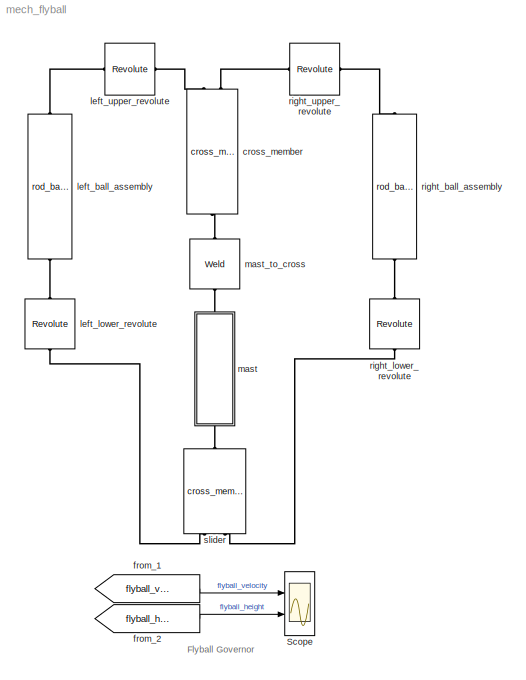
MODEL mech_flyball
KIND model
CONFIG InitFcn = flyball=mech_flyball_data;
CONFIG PreLoadFcn = flyball=mech_flyball_data;
BLOCK [Scope] Scope
  DataFormat = StructureWithTime
  NumInputPorts = 2
  Ports = [2]
  YMax = 50~20
  YMin = 0~-2.5
BLOCK [Reference] cross_member  REF=mech_flyball_lib/cross_member  (lib defined in mdl_2065cbf4949d, mdl_c7b35286ae11)
  Ports = [0, 0, 0, 0, 0, 2, 1]
  ShowPortLabels = on
  SourceBlock = mech_flyball_lib/cross_member
  density = flyball.brass
  rod_length = flyball.cross_member.length
  rod_radius = flyball.cross_member.radius
BLOCK [From] from_1
  CloseFcn = tagdialog Close
  DialogController = Simulink.DDGSource
  GotoTag = flyball_velocity
BLOCK [From] from_2
  CloseFcn = tagdialog Close
  DialogController = Simulink.DDGSource
  GotoTag = flyball_height
BLOCK [Reference] left_ball_assembly  REF=mech_flyball_lib/rod_ball_assembly  (lib defined in mdl_2065cbf4949d, mdl_c7b35286ae11)
  Ports = [0, 0, 0, 0, 0, 1, 1]
  ShowPortLabels = on
  SourceBlock = mech_flyball_lib/rod_ball_assembly
  ball_radius = flyball.ball.radius
  density = flyball.brass
  hookup_length = flyball.ball_rod.connection
  rod_length = flyball.ball_rod.length
  rod_radius = flyball.ball_rod.radius
  rotation = pi/4
BLOCK [Reference] left_lower_revolute  REF=mblibv1/Joints/Revolute
  ClassName = Joint
  CutJoint = off
  DialogClass = JointBlock
  LConnTagsString = __newl0
  LeftPortType = blob
  MarkAsCut = off
  NumSAPorts = 0
  PhysicalDomain = mechanical
  Ports = [0, 0, 0, 0, 0, 1, 1]
  PrimitiveProps = R1$WORLD$[0 1 0]$revolute
  Primitives = revolute
  RConnTagsString = __newr0
  RightPortType = blob
  SourceBlock = mblibv1/Joints/Revolute
  SourceType = msb
  SubClassName = Unknown
BLOCK [Reference] left_upper_revolute  REF=mblibv1/Joints/Revolute
  ClassName = Joint
  CutJoint = off
  DialogClass = JointBlock
  LConnTagsString = __newl0
  LeftPortType = blob
  MarkAsCut = off
  NumSAPorts = 0
  PhysicalDomain = mechanical
  Ports = [0, 0, 0, 0, 0, 1, 1]
  PrimitiveProps = R1$WORLD$[0 1 0]$revolute
  Primitives = revolute
  RConnTagsString = __newr0
  RightPortType = blob
  SourceBlock = mblibv1/Joints/Revolute
  SourceType = msb
  SubClassName = Unknown
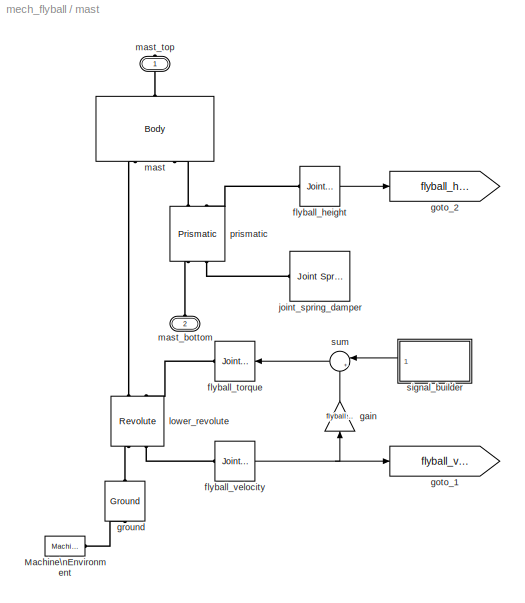
BLOCK [SubSystem] mast
  MinAlgLoopOccurrences = off
  Ports = [0, 0, 0, 0, 0, 1, 1]
  RTWSystemCode = Auto
  TreatAsAtomicUnit = off
BLOCK [Reference] mast/Machine\nEnvironment  REF=mblibv1/Bodies/Machine\nEnvironment
  AnalysisType = Forward dynamics
  AngularAssemblyTolerance = 1e-3
  AngularAssemblyToleranceUnits = rad
  ClassName = Environment
  ConstraintAbsTolerance = 1e-4
  ConstraintRelTolerance = 1e-4
  ConstraintSolverType = Stabilizing
  DialogController = MECH.DialogSource
  DialogTemplateClass = MECH.MachineEnvironment
  Dimensionality = 3D Only
  Gravity = [0 0 -9.81]
  GravityAsSignal = off
  GravityUnits = m/s^2
  LinearAssemblyTolerance = 1e-3
  LinearAssemblyToleranceUnits = m
  Opaque = on
  PerturbationSize = 1e-5
  PhysicalDomain = Mechanical
  PortType = env
  Ports = [0, 0, 0, 0, 0, 0, 1]
  ShowPortLabels = on
  SourceBlock = mblibv1/Bodies/Machine\nEnvironment
  SourceType = Mechanical
  StatePerturbationType = Fixed
  SyncWhenCopied = off
  Tag = Factory ground
  UseRobustSingularityHandling = off
  VisualizeMachine = on
BLOCK [Reference] mast/flyball_height  REF=mblibv1/Sensors & \nActuators/Joint Sensor
  Acceleration = off
  AccelerationUnits = m/s^2
  ActiveIO = on
  Angle = on
  AngleUnits = deg
  ArcAcceleration = off
  ArcAccelerationUnits = deg/s^2
  ArcVelocity = off
  ArcVelocityUnits = deg/s
  ClassName = JointSensor
  CoordPosition = on
  CoordPositionUnits = cm
  DialogClass = MechanicalSensorBlock
  Force = off
  ForceUnits = N
  Muxed = on
  Opaque = on
  OutputVector = [ 1 ]
  PhysicalDomain = Mechanical
  PortType = blob
  Ports = [0, 1, 0, 0, 0, 1]
  Pose = off
  Primitive = P1
  Quaternion = on
  QuaternionDDT = off
  QuaternionDT = off
  QuaternionUnits = deg
  ReactionForce = off
  ReactionForceUnits = N
  ReactionMoment = off
  ReactionMomentUnits = N-m
  ReactionReferenceFrame = Absolute (World)
  ReactionSensedSide = Base
  ReferenceFrame = Absolute (INERTIAL)
  ShowPortLabels = on
  SourceBlock = mblibv1/Sensors & \nActuators/Joint Sensor
  SourceType = msb
  Torque = off
  TorqueUnits = N-m
  Velocity = off
  VelocityUnits = m/s
  Width = 1
BLOCK [Reference] mast/flyball_torque  REF=mblibv1/Sensors & \nActuators/Joint Actuator
  AccelerationUnits = cm/s^2
  ActiveIO = on
  ActuationStyle = Force
  AngleUnits = rad
  ArcAccelerationUnits = rad/s^2
  ArcVelocityUnits = rad/s
  ClassName = JointActuator
  CoordPositionUnits = cm
  DialogClass = MechanicalActuatorBlock
  ForceUnits = N
  Opaque = on
  PhysicalDomain = Mechanical
  PortType = blob
  Ports = [1, 0, 0, 0, 0, 0, 1]
  Primitive = R1
  ReferenceFrame = Absolute (INERTIAL)
  ShowPortLabels = on
  SourceBlock = mblibv1/Sensors & \nActuators/Joint Actuator
  SourceType = msb
  TorqueUnits = N-m
  VelocityUnits = cm/s
  Width = 1
BLOCK [Reference] mast/flyball_velocity  REF=mblibv1/Sensors & \nActuators/Joint Sensor
  Acceleration = off
  AccelerationUnits = m/s^2
  ActiveIO = on
  Angle = off
  AngleUnits = deg
  ArcAcceleration = off
  ArcAccelerationUnits = deg/s^2
  ArcVelocity = on
  ArcVelocityUnits = rad/s
  ClassName = JointSensor
  CoordPosition = on
  CoordPositionUnits = m
  DialogClass = MechanicalSensorBlock
  Force = off
  ForceUnits = N
  Muxed = on
  Opaque = on
  OutputVector = [ 1 ]
  PhysicalDomain = Mechanical
  PortType = blob
  Ports = [0, 1, 0, 0, 0, 1]
  Pose = off
  Primitive = R1
  Quaternion = on
  QuaternionDDT = off
  QuaternionDT = off
  QuaternionUnits = deg
  ReactionForce = off
  ReactionForceUnits = N
  ReactionMoment = off
  ReactionMomentUnits = N-m
  ReactionReferenceFrame = Absolute (World)
  ReactionSensedSide = Base
  ReferenceFrame = Absolute (INERTIAL)
  ShowPortLabels = on
  SourceBlock = mblibv1/Sensors & \nActuators/Joint Sensor
  SourceType = msb
  Torque = off
  TorqueUnits = N-m
  Velocity = off
  VelocityUnits = m/s
  Width = 1
BLOCK [Gain] mast/gain
  Gain = flyball.mast.rotational_damping
BLOCK [Goto] mast/goto_1
  DialogController = Simulink.DDGSource
  GotoTag = flyball_velocity
  TagVisibility = global
BLOCK [Goto] mast/goto_2
  DialogController = Simulink.DDGSource
  GotoTag = flyball_height
  TagVisibility = global
BLOCK [Reference] mast/ground  REF=mblibv1/Bodies/Ground
  ClassName = Ground
  CoordPosition = [0 0 0]
  CoordPositionUnits = m
  DialogClass = GroundBlock
  LeftPortType = env
  MachineId = [0 0]
  Opaque = on
  PhysicalDomain = Mechanical
  Ports = [0, 0, 0, 0, 0, 1, 1]
  RightPortType = workingframe
  ShowEnvPort = on
  ShowPortLabels = on
  SourceBlock = mblibv1/Bodies/Ground
  SourceType = msb
  StateVectorMgrId = -1
  UserData = DataTag0
  UserDataPersistent = on
BLOCK [Reference] mast/joint_spring_damper  REF=mblibv1/Force \nElements/Joint Spring & Damper
  ClassName = JointSpringDamper
  DialogClass = JointSpringDamper
  JFEParameters = P1$true$flyball.mast.spring$flyball.mast.damping$0$cm$cm/s$N$rad$rad/s$N-m#P2$false$0$0$0$m$m/s$N$rad$rad/s$N-m#P3$false$0$0$0$m$m/s$N$rad$rad/s$N-m#R1$false$0$0$0$m$m/s$N$rad$rad/s$N-m#R2$false$0$0$0$m$m/s$N$rad$rad/s$N-m#R3$false$0$0$0$m$m/s$N$rad$rad/s$N-m#S$false$0$0$0$m$m/s$N$rad$rad/s$N-m
  Ports = [0, 0, 0, 0, 0, 1]
  ShowPortLabels = on
  SourceBlock = mblibv1/Force \nElements/Joint Spring & Damper
  SourceType = msb
BLOCK [Reference] mast/lower_revolute  REF=mblibv1/Joints/Revolute
  ClassName = Joint
  CutJoint = off
  DialogClass = JointBlock
  LConnTagsString = __newl0|SA1
  LeftPortType = blob
  MarkAsCut = off
  NumSAPorts = 2
  PhysicalDomain = mechanical
  Ports = [0, 0, 0, 0, 0, 2, 2]
  PrimitiveProps = R1$WORLD$[0 0 1]$revolute
  Primitives = revolute
  RConnTagsString = __newr0|SA1
  RightPortType = blob
  SourceBlock = mblibv1/Joints/Revolute
  SourceType = msb
  SubClassName = Unknown
BLOCK [Reference] mast/mast  REF=mblibv1/Bodies/Body
  CG = Left$CG$[0 0 flyball.mast.length]*0.5$CS1$CS1$cm$[0 0 0]$Euler X-Y-Z$deg$WORLD$false
  ClassName = Body
  Density = 1
  DensityUnits = kg/m^3
  DensityUse = false
  DialogClass = MechanicalBodyBlock
  Inertia = mech_flyball_rod_inertia(flyball.mast.length, flyball.mast.radius, flyball.brass, [0 0 1])
  InertiaUnits = g*cm^2
  LConnTagsString = CS1|CS3
  LeftPortType = workingframe
  Mass = mech_flyball_rod_mass(flyball.mast.length, flyball.mast.radius, flyball.brass)
  MassUnits = g
  PhysicalDomain = mechanical
  Ports = [0, 0, 0, 0, 0, 2, 1]
  RConnTagsString = CS2
  RightPortType = workingframe
  Shape = Cylinder
  ShapeDims = [1 1]
  ShapeUnits = m
  ShapeUse = false
  SourceBlock = mblibv1/Bodies/Body
  SourceType = msb
  SubClassName = Unknown
  WorkingFrames = Left$CS1$[0 0 0]$ADJOINING$ADJOINING$cm$[0 0 0]$Euler X-Y-Z$deg$WORLD$true#Right$CS2$[0 0 flyball.mast.length]$CS1$CS1$cm$[0 0 0]$Euler X-Y-Z$deg$WORLD$true#Left$CS3$-[0 0 flyball.mast.connection]$CS2$CS2$cm$[0 0 0]$Euler X-Y-Z$deg$WORLD$true
BLOCK [PMIOPort] mast/mast_bottom
  Port = 2
  Side = Left
BLOCK [PMIOPort] mast/mast_top
  Port = 1
  Side = Right
BLOCK [Reference] mast/prismatic  REF=mblibv1/Joints/Prismatic
  ClassName = Joint
  CutJoint = off
  DialogClass = JointBlock
  LConnTagsString = __newl0|SA1
  LeftPortType = blob
  MarkAsCut = off
  NumSAPorts = 2
  PhysicalDomain = mechanical
  Ports = [0, 0, 0, 0, 0, 2, 2]
  PrimitiveProps = P1$WORLD$[0 0 1]$prismatic
  Primitives = prismatic
  RConnTagsString = __newr0|SA1
  RightPortType = blob
  SourceBlock = mblibv1/Joints/Prismatic
  SourceType = msb
  SubClassName = Unknown
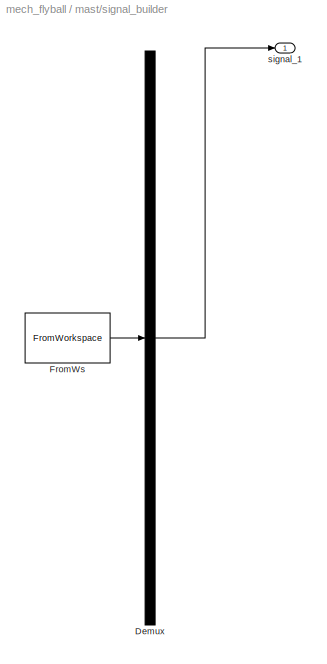
BLOCK [SubSystem] mast/signal_builder
  ClipboardFcn = sigbuilder_block('clipboard');
  CloseFcn = sigbuilder_block('close');
  CopyFcn = sigbuilder_block('copy');
  DeleteFcn = sigbuilder_block('delete');
  LoadFcn = sigbuilder_block('load');
  MaskDescription = Sigbuilder GUI
  MaskDisplay = plot(0,0,100,100,[10,10,40,40,10],[80,20,20,80,80],[40,10],[50,50], [40,27,10],[65,72,56],[40,25,25,10],[28,28,43,43]);
  MaskIconFrame = on
  MaskIconOpaque = off
  MaskIconRotate = port
  MaskIconUnits = autoscale
  MaskInitialization = if ~strcmp(get_param(bdroot(gcb),'SimulationStatus'),'stopped') tuvar = sigbuilder_block('maskInit'); end
  MaskType = Sigbuilder block
  MinAlgLoopOccurrences = off
  ModelCloseFcn = sigbuilder_block('modelClose');
  NameChangeFcn = sigbuilder_block('namechange');
  OpenFcn = sigbuilder_block('open',[126.4 317.6 520 400 ]);
  Ports = [0, 1]
  PreSaveFcn = sigbuilder_block('preSave');
  RTWSystemCode = Auto
  StartFcn = sigbuilder_block('start');
  StopFcn = sigbuilder_block('stop');
  Tag = STV Subsys
  TreatAsAtomicUnit = off
BLOCK [Demux] mast/signal_builder/Demux
  Outputs = 1
  Ports = [1, 1]
  Tag = STV Demux
BLOCK [FromWorkspace] mast/signal_builder/FromWs
  SampleTime = 0
  SigBuilderData = DataTag1
  Tag = STV FromWs
  VariableName = tuvar
  VnvData = DataTag2
BLOCK [Outport] mast/signal_builder/signal_1
  BusOutputAsStruct = off
  IconDisplay = Port number
  Tag = STV Outport
BLOCK [Sum] mast/sum
  IconShape = round
  InputSameDT = off
  Inputs = |+-
  OutDataTypeMode = Inherit via internal rule
  Ports = [2, 1]
BLOCK [Reference] mast_to_cross  REF=mblibv1/Joints/Weld
  ClassName = Joint
  CutJoint = off
  DialogClass = JointBlock
  LConnTagsString = __newl0
  LeftPortType = blob
  MarkAsCut = off
  NumSAPorts = 0
  PhysicalDomain = mechanical
  Ports = [0, 0, 0, 0, 0, 1, 1]
  PrimitiveProps = W$INERTIAL$[0 0 0]$weld
  Primitives = weld
  RConnTagsString = __newr0
  RightPortType = blob
  SourceBlock = mblibv1/Joints/Weld
  SourceType = msb
  SubClassName = Unknown
BLOCK [Reference] right_ball_assembly  REF=mech_flyball_lib/rod_ball_assembly  (lib defined in mdl_2065cbf4949d, mdl_c7b35286ae11)
  Ports = [0, 0, 0, 0, 0, 1, 1]
  ShowPortLabels = on
  SourceBlock = mech_flyball_lib/rod_ball_assembly
  ball_radius = flyball.ball.radius
  density = flyball.brass
  hookup_length = flyball.ball_rod.connection
  rod_length = flyball.ball_rod.length
  rod_radius = flyball.ball_rod.radius
  rotation = -pi/4
BLOCK [Reference] right_lower_revolute  REF=mblibv1/Joints/Revolute
  ClassName = Joint
  CutJoint = off
  DialogClass = JointBlock
  LConnTagsString = __newl0
  LeftPortType = blob
  MarkAsCut = off
  NumSAPorts = 0
  PhysicalDomain = mechanical
  Ports = [0, 0, 0, 0, 0, 1, 1]
  PrimitiveProps = R1$WORLD$[0 1 0]$revolute
  Primitives = revolute
  RConnTagsString = __newr0
  RightPortType = blob
  SourceBlock = mblibv1/Joints/Revolute
  SourceType = msb
  SubClassName = Unknown
BLOCK [Reference] right_upper_revolute  REF=mblibv1/Joints/Revolute
  ClassName = Joint
  CutJoint = off
  DialogClass = JointBlock
  LConnTagsString = __newl0
  LeftPortType = blob
  MarkAsCut = off
  NumSAPorts = 0
  PhysicalDomain = mechanical
  Ports = [0, 0, 0, 0, 0, 1, 1]
  PrimitiveProps = R1$WORLD$[0 1 0]$revolute
  Primitives = revolute
  RConnTagsString = __newr0
  RightPortType = blob
  SourceBlock = mblibv1/Joints/Revolute
  SourceType = msb
  SubClassName = Unknown
BLOCK [Reference] slider  REF=mech_flyball_lib/cross_member  (lib defined in mdl_2065cbf4949d, mdl_c7b35286ae11)
  Ports = [0, 0, 0, 0, 0, 2, 1]
  ShowPortLabels = on
  SourceBlock = mech_flyball_lib/cross_member
  density = flyball.brass
  rod_length = flyball.cross_member.length
  rod_radius = flyball.cross_member.radius
ANNOTATION (root): Flyball Governor
LINE from_1:1 -> Scope:1
LINE from_2:1 -> Scope:2
LINE mast/flyball_height:1 -> mast/goto_2:1
NET mast/flyball_velocity:1 -> mast/gain:1, mast/goto_1:1
LINE mast/gain:1 -> mast/sum:2
LINE mast/signal_builder/Demux:1 -> mast/signal_builder/signal_1:1
LINE mast/signal_builder/FromWs:1 -> mast/signal_builder/Demux:1
LINE mast/signal_builder:1 -> mast/sum:1
LINE mast/sum:1 -> mast/flyball_torque:1
PLINE cross_member:LConn1 -- left_upper_revolute:RConn1
PLINE cross_member:LConn2 -- right_upper_revolute:LConn1
PLINE cross_member:RConn1 -- mast_to_cross:RConn1
PLINE left_ball_assembly:LConn1 -- left_lower_revolute:RConn1
PLINE left_ball_assembly:RConn1 -- left_upper_revolute:LConn1
PLINE left_lower_revolute:LConn1 -- slider:LConn1
PLINE mast/Machine\nEnvironment:RConn1 -- mast/ground:LConn1
PLINE mast/flyball_height:LConn1 -- mast/prismatic:LConn2
PLINE mast/flyball_torque:RConn1 -- mast/lower_revolute:RConn2
PLINE mast/flyball_velocity:LConn1 -- mast/lower_revolute:LConn2
PLINE mast/ground:RConn1 -- mast/lower_revolute:LConn1
PLINE mast/joint_spring_damper:LConn1 -- mast/prismatic:RConn2
PLINE mast/lower_revolute:RConn1 -- mast/mast:LConn1
PLINE mast/mast:LConn2 -- mast/prismatic:LConn1
PLINE mast/mast:RConn1 -- mast/mast_top:RConn1
PLINE mast/mast_bottom:RConn1 -- mast/prismatic:RConn1
PLINE mast:LConn1 -- slider:RConn1
PLINE mast:RConn1 -- mast_to_cross:LConn1
PLINE right_ball_assembly:LConn1 -- right_lower_revolute:RConn1
PLINE right_ball_assembly:RConn1 -- right_upper_revolute:RConn1
PLINE right_lower_revolute:LConn1 -- slider:LConn2
note: NET lines group one-source signal fan-out (src -> all destinations, sorted); 1:1 wires keep LINE
